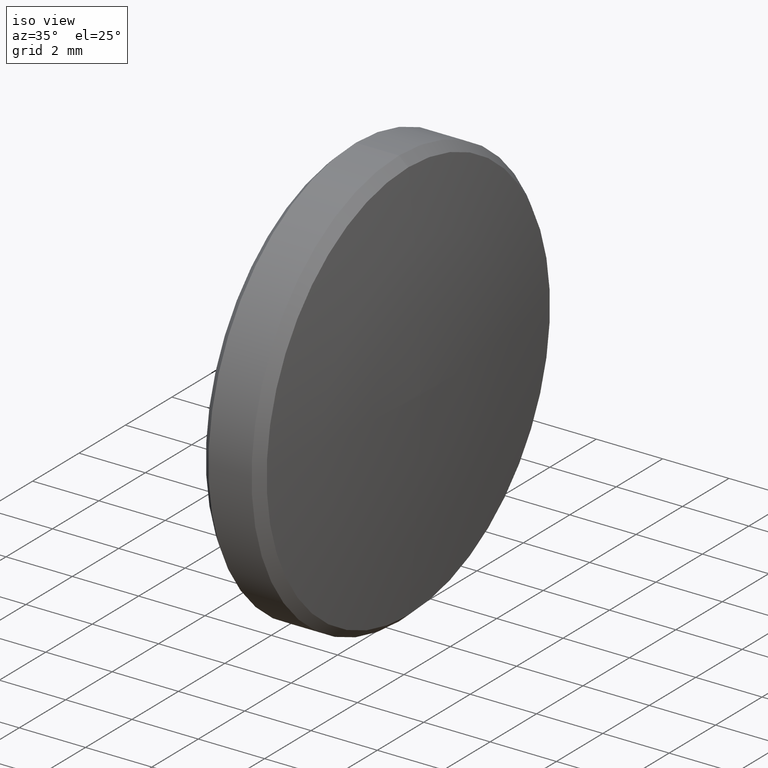
[diagram: clean part render]
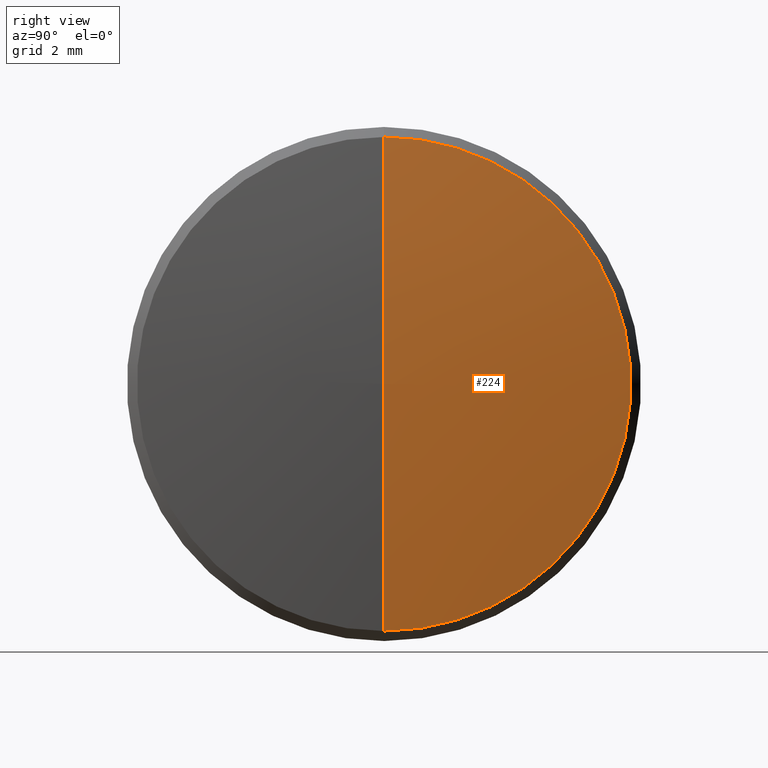
[diagram: tour spotlight — one face highlighted and labeled with its STEP entity id]
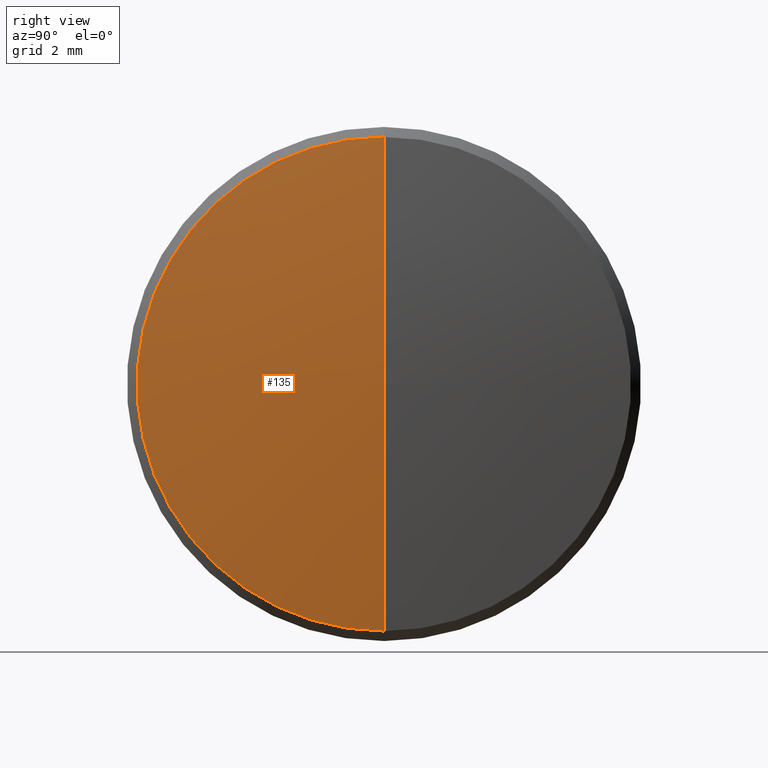
[diagram: tour spotlight — one face highlighted and labeled with its STEP entity id]
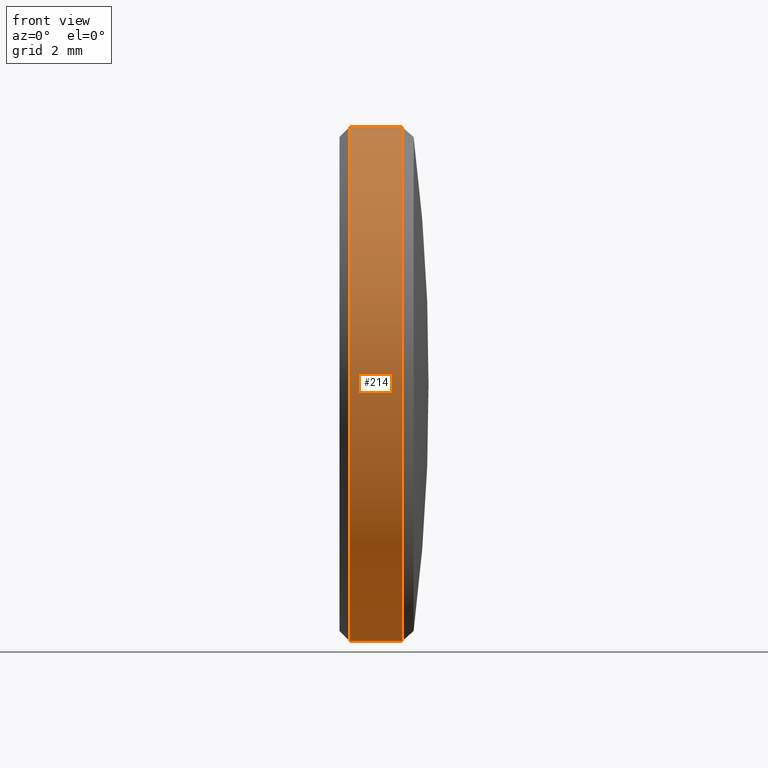
[diagram: tour spotlight — one face highlighted and labeled with its STEP entity id]
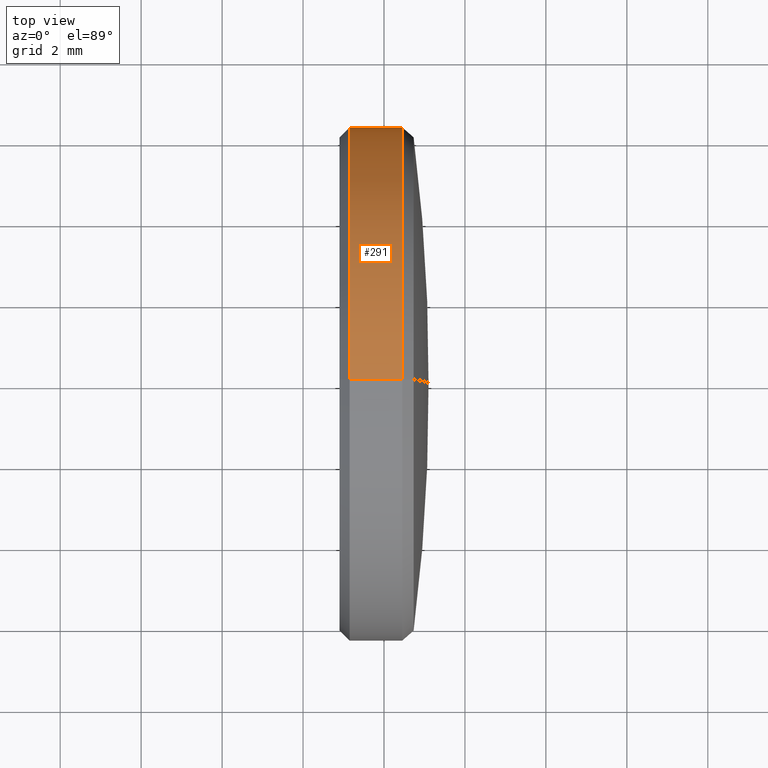
[diagram: tour spotlight — one face highlighted and labeled with its STEP entity id]
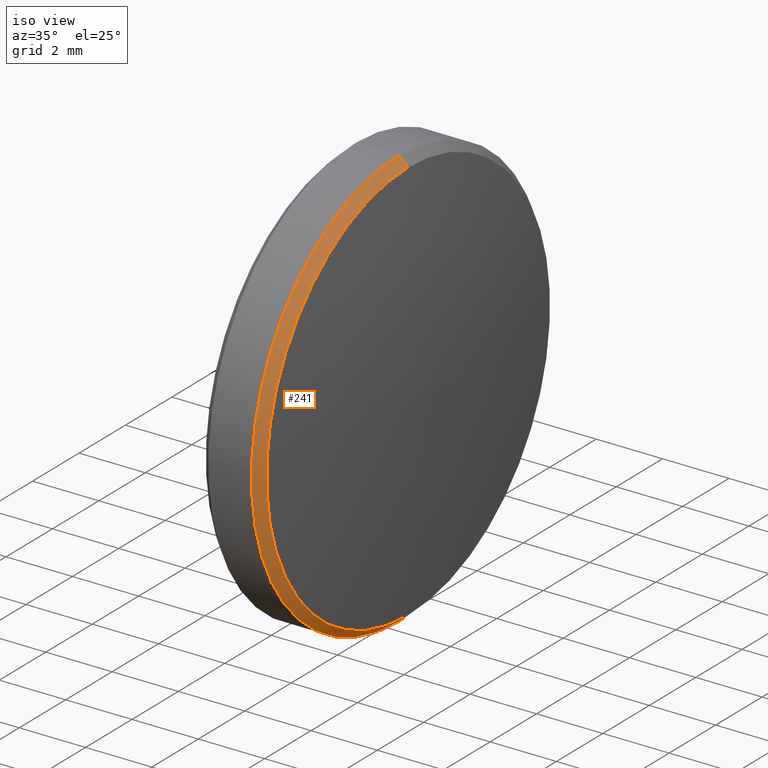
[diagram: tour spotlight — one face highlighted and labeled with its STEP entity id]
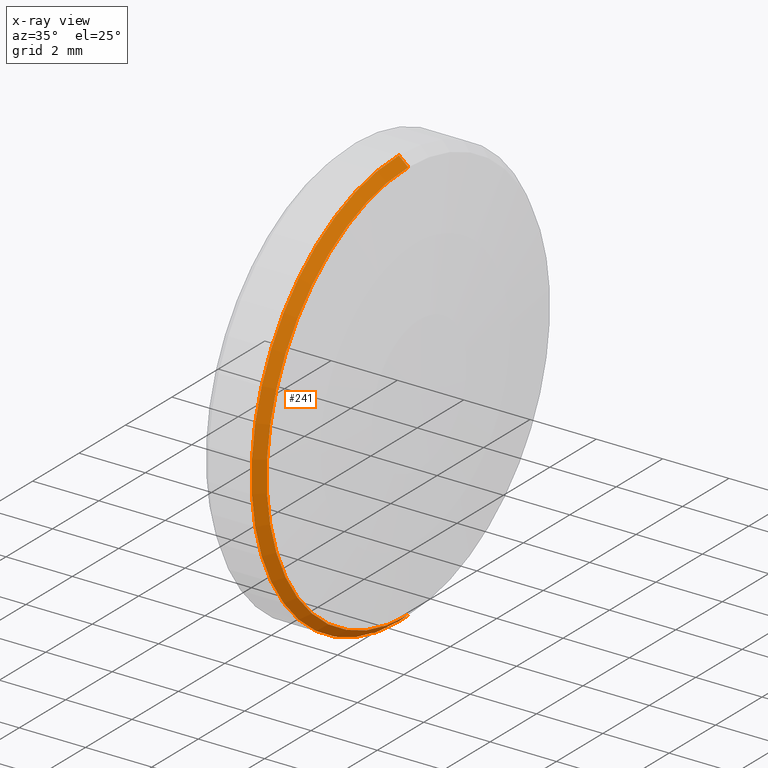
[diagram: x-ray of the same camera — body ghosted, this tour face saturated]
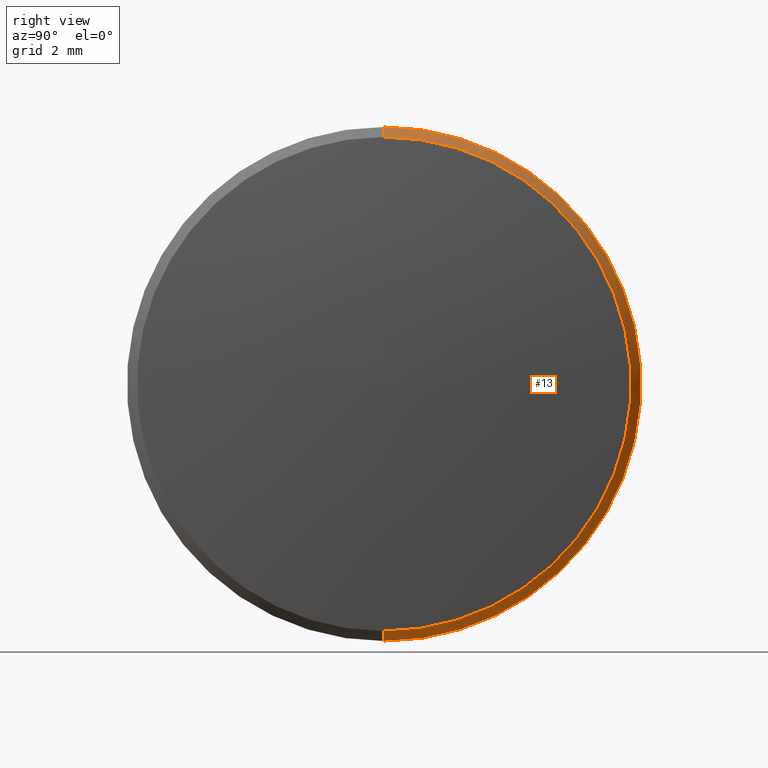
[diagram: tour spotlight — one face highlighted and labeled with its STEP entity id]
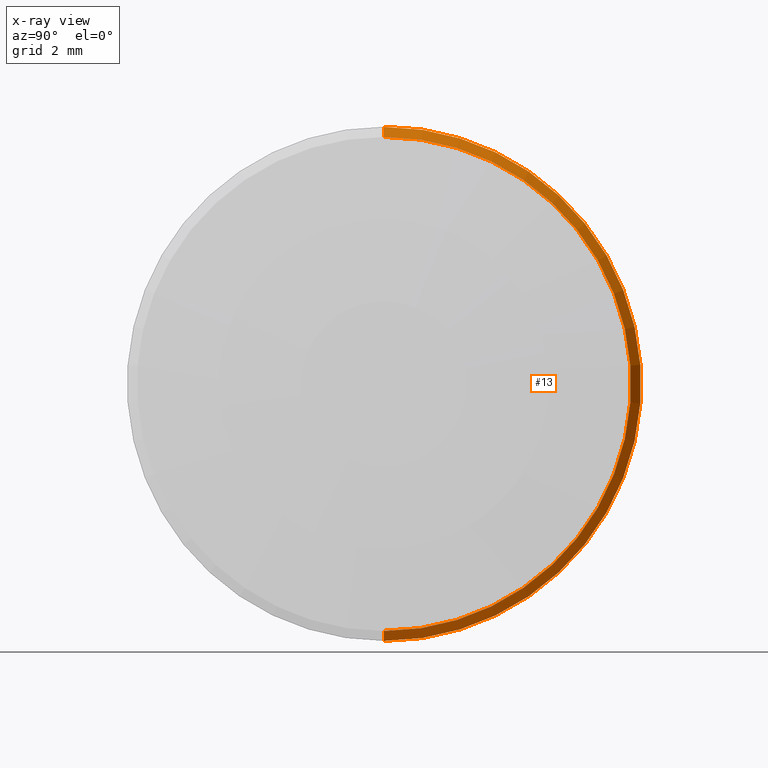
[diagram: x-ray of the same camera — body ghosted, this tour face saturated]
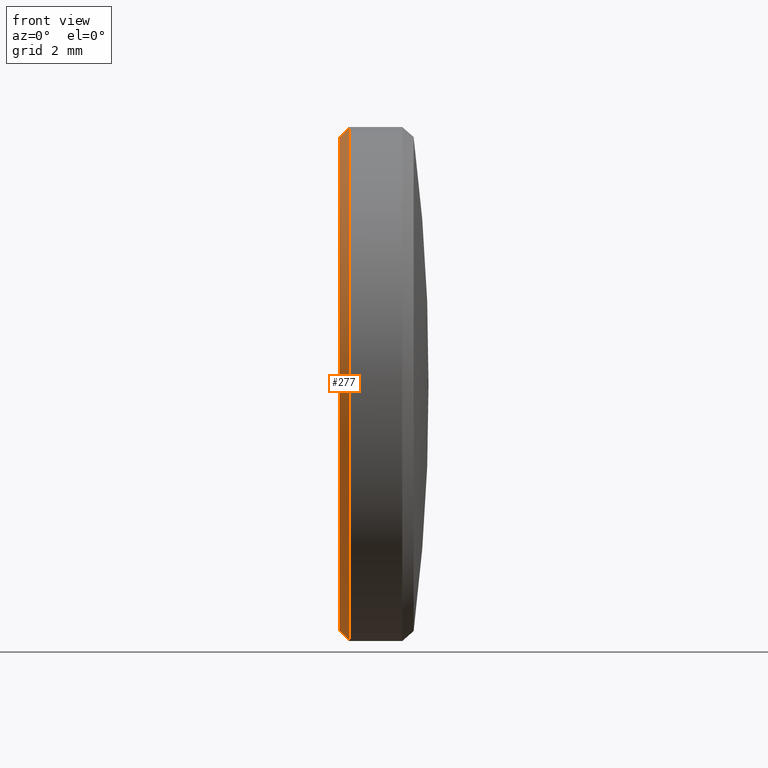
[diagram: tour spotlight — one face highlighted and labeled with its STEP entity id]
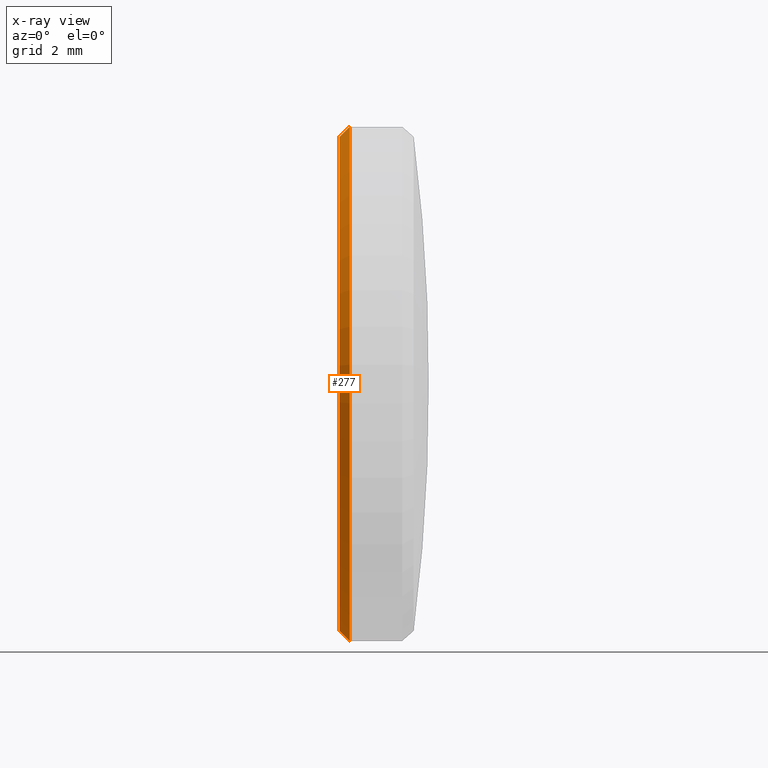
[diagram: x-ray of the same camera — body ghosted, this tour face saturated]
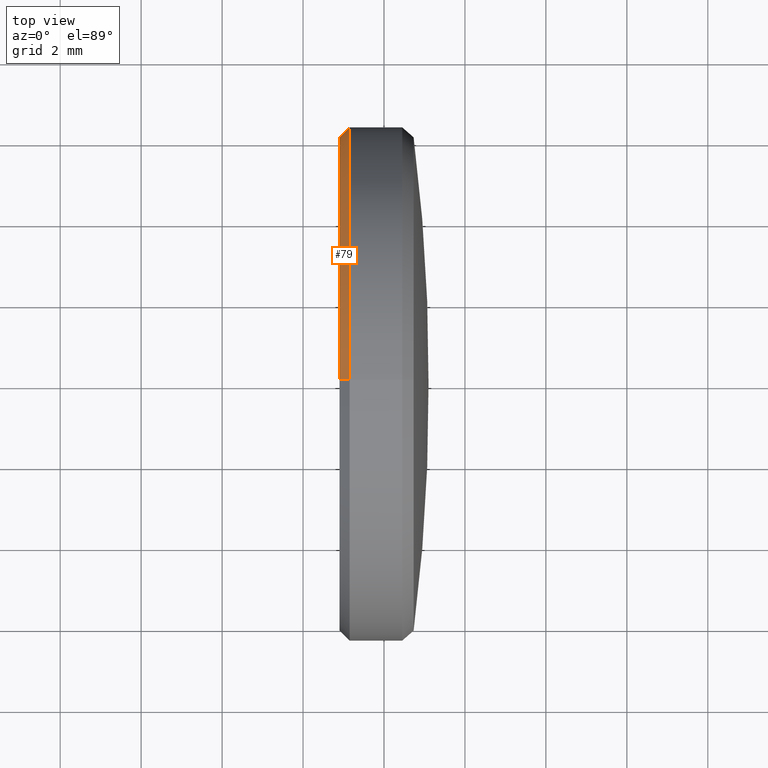
[diagram: tour spotlight — one face highlighted and labeled with its STEP entity id]
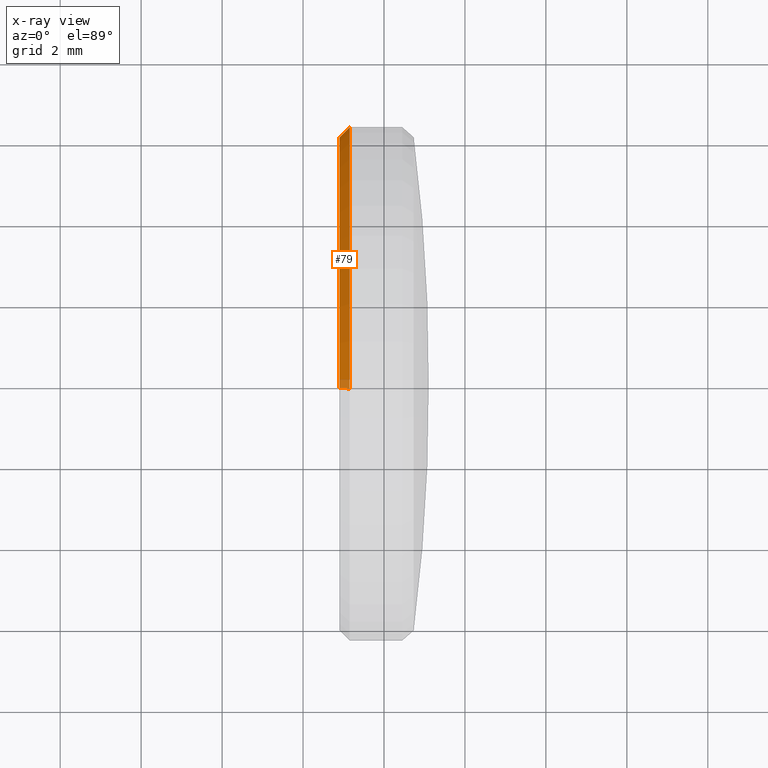
[diagram: x-ray of the same camera — body ghosted, this tour face saturated]
A machine part: a face-by-face anatomy tour. The part has 9 B-rep faces; the first image is the clean iso view, then the 8 largest visible faces are spotlighted one at a time (largest first), each with its STEP entity span.

Face 1 — right view, entity #224. In plain terms, the highlighted toroidal blend (fillet) surface has major radius 0.29 mm and minor (blend) radius 46 mm.
Definition (entity closure, byte-faithful):
#3 = CARTESIAN_POINT ( 'NONE',  ( -44.89908574560622900, 0.0000000000000000000, 0.2900182207492126900 ) ) ;
#12 = EDGE_LOOP ( 'NONE', ( #253, #68, #116 ) ) ;
#17 = DIRECTION ( 'NONE',  ( 1.000000000000000000, 0.0000000000000000000, 0.0000000000000000000 ) ) ;
#19 = CARTESIAN_POINT ( 'NONE',  ( 1.100000000000000100, 0.0000000000000000000, 0.0000000000000000000 ) ) ;
#44 = CARTESIAN_POINT ( 'NONE',  ( -44.89908574560622900, 3.551698857349338500E-017, -0.2900182207492126900 ) ) ;
#64 = CARTESIAN_POINT ( 'NONE',  ( 0.7321638494021294200, 7.473840680126849300E-016, -6.102854051740002300 ) ) ;
#68 = ORIENTED_EDGE ( 'NONE', *, *, #194, .T. ) ;
#89 = EDGE_CURVE ( 'NONE', #101, #103, #288, .T. ) ;
#92 = CARTESIAN_POINT ( 'NONE',  ( 0.7321638494021294200, 0.0000000000000000000, 6.102854051740002300 ) ) ;
#95 = AXIS2_PLACEMENT_3D ( 'NONE', #121, #17, #159 ) ;
#101 = VERTEX_POINT ( 'NONE', #19 ) ;
#103 = VERTEX_POINT ( 'NONE', #92 ) ;
#107 = DIRECTION ( 'NONE',  ( 0.0000000000000000000, -1.224646799147353200E-016, 1.000000000000000000 ) ) ;
#116 = ORIENTED_EDGE ( 'NONE', *, *, #282, .T. ) ;
#121 = CARTESIAN_POINT ( 'NONE',  ( 0.7321638494021259800, 0.0000000000000000000, 0.0000000000000000000 ) ) ;
#144 = CIRCLE ( 'NONE', #95, 6.102854051739994300 ) ;
#159 = DIRECTION ( 'NONE',  ( 0.0000000000000000000, 0.0000000000000000000, 1.000000000000000000 ) ) ;
#164 = TOROIDAL_SURFACE ( 'NONE', #290, 0.2900182207492126900, 46.00000000000000700 ) ;
#178 = AXIS2_PLACEMENT_3D ( 'NONE', #3, #297, #257 ) ;
#194 = EDGE_CURVE ( 'NONE', #101, #258, #210, .T. ) ;
#198 = DIRECTION ( 'NONE',  ( -1.000000000000000000, -0.0000000000000000000, -0.0000000000000000000 ) ) ;
#210 = CIRCLE ( 'NONE', #245, 46.00000000000000700 ) ;
#212 = DIRECTION ( 'NONE',  ( 0.0000000000000000000, 0.0000000000000000000, 1.000000000000000000 ) ) ;
#213 = FACE_OUTER_BOUND ( 'NONE', #12, .T. ) ;
#221 = CARTESIAN_POINT ( 'NONE',  ( -44.89908574560622900, 0.0000000000000000000, 0.0000000000000000000 ) ) ;
#224 = ADVANCED_FACE ( 'NONE', ( #213 ), #164, .T. ) ;
#245 = AXIS2_PLACEMENT_3D ( 'NONE', #44, #284, #107 ) ;
#253 = ORIENTED_EDGE ( 'NONE', *, *, #89, .F. ) ;
#257 = DIRECTION ( 'NONE',  ( 0.0000000000000000000, 0.0000000000000000000, -1.000000000000000000 ) ) ;
#258 = VERTEX_POINT ( 'NONE', #64 ) ;
#282 = EDGE_CURVE ( 'NONE', #258, #103, #144, .T. ) ;
#284 = DIRECTION ( 'NONE',  ( -0.0000000000000000000, 1.000000000000000000, 1.224646799147353200E-016 ) ) ;
#288 = CIRCLE ( 'NONE', #178, 46.00000000000000700 ) ;
#290 = AXIS2_PLACEMENT_3D ( 'NONE', #221, #198, #212 ) ;
#297 = DIRECTION ( 'NONE',  ( 0.0000000000000000000, -1.000000000000000000, 0.0000000000000000000 ) ) ;

Face 2 — right view, entity #135. In plain terms, the highlighted toroidal blend (fillet) surface has major radius 0.29 mm and minor (blend) radius 46 mm.
Definition (entity closure, byte-faithful):
#3 = CARTESIAN_POINT ( 'NONE',  ( -44.89908574560622900, 0.0000000000000000000, 0.2900182207492126900 ) ) ;
#4 = DIRECTION ( 'NONE',  ( 0.0000000000000000000, 0.0000000000000000000, 1.000000000000000000 ) ) ;
#19 = CARTESIAN_POINT ( 'NONE',  ( 1.100000000000000100, 0.0000000000000000000, 0.0000000000000000000 ) ) ;
#32 = ORIENTED_EDGE ( 'NONE', *, *, #194, .F. ) ;
#44 = CARTESIAN_POINT ( 'NONE',  ( -44.89908574560622900, 3.551698857349338500E-017, -0.2900182207492126900 ) ) ;
#64 = CARTESIAN_POINT ( 'NONE',  ( 0.7321638494021294200, 7.473840680126849300E-016, -6.102854051740002300 ) ) ;
#67 = ORIENTED_EDGE ( 'NONE', *, *, #232, .T. ) ;
#73 = CARTESIAN_POINT ( 'NONE',  ( -44.89908574560622900, 0.0000000000000000000, 0.0000000000000000000 ) ) ;
#88 = ORIENTED_EDGE ( 'NONE', *, *, #89, .T. ) ;
#89 = EDGE_CURVE ( 'NONE', #101, #103, #288, .T. ) ;
#92 = CARTESIAN_POINT ( 'NONE',  ( 0.7321638494021294200, 0.0000000000000000000, 6.102854051740002300 ) ) ;
#100 = AXIS2_PLACEMENT_3D ( 'NONE', #105, #301, #4 ) ;
#101 = VERTEX_POINT ( 'NONE', #19 ) ;
#103 = VERTEX_POINT ( 'NONE', #92 ) ;
#105 = CARTESIAN_POINT ( 'NONE',  ( 0.7321638494021259800, 0.0000000000000000000, 0.0000000000000000000 ) ) ;
#106 = DIRECTION ( 'NONE',  ( -1.000000000000000000, -0.0000000000000000000, -0.0000000000000000000 ) ) ;
#107 = DIRECTION ( 'NONE',  ( 0.0000000000000000000, -1.224646799147353200E-016, 1.000000000000000000 ) ) ;
#109 = CIRCLE ( 'NONE', #100, 6.102854051739994300 ) ;
#127 = AXIS2_PLACEMENT_3D ( 'NONE', #73, #106, #166 ) ;
#135 = ADVANCED_FACE ( 'NONE', ( #192 ), #197, .T. ) ;
#166 = DIRECTION ( 'NONE',  ( 0.0000000000000000000, 0.0000000000000000000, 1.000000000000000000 ) ) ;
#176 = EDGE_LOOP ( 'NONE', ( #32, #88, #67 ) ) ;
#178 = AXIS2_PLACEMENT_3D ( 'NONE', #3, #297, #257 ) ;
#192 = FACE_OUTER_BOUND ( 'NONE', #176, .T. ) ;
#194 = EDGE_CURVE ( 'NONE', #101, #258, #210, .T. ) ;
#197 = TOROIDAL_SURFACE ( 'NONE', #127, 0.2900182207492126900, 46.00000000000000700 ) ;
#210 = CIRCLE ( 'NONE', #245, 46.00000000000000700 ) ;
#232 = EDGE_CURVE ( 'NONE', #103, #258, #109, .T. ) ;
#245 = AXIS2_PLACEMENT_3D ( 'NONE', #44, #284, #107 ) ;
#257 = DIRECTION ( 'NONE',  ( 0.0000000000000000000, 0.0000000000000000000, -1.000000000000000000 ) ) ;
#258 = VERTEX_POINT ( 'NONE', #64 ) ;
#284 = DIRECTION ( 'NONE',  ( -0.0000000000000000000, 1.000000000000000000, 1.224646799147353200E-016 ) ) ;
#288 = CIRCLE ( 'NONE', #178, 46.00000000000000700 ) ;
#297 = DIRECTION ( 'NONE',  ( 0.0000000000000000000, -1.000000000000000000, 0.0000000000000000000 ) ) ;
#301 = DIRECTION ( 'NONE',  ( 1.000000000000000000, 0.0000000000000000000, 0.0000000000000000000 ) ) ;

Face 3 — front view, entity #214. In plain terms, the highlighted cylindrical surface (partial cylindrical patch) has radius 6.35 mm, axis along (-1, -0, -0).
Definition (entity closure, byte-faithful):
#1 = VERTEX_POINT ( 'NONE', #218 ) ;
#6 = DIRECTION ( 'NONE',  ( 0.0000000000000000000, 0.0000000000000000000, 1.000000000000000000 ) ) ;
#28 = CARTESIAN_POINT ( 'NONE',  ( 0.4499999999992704300, 7.776507174585695100E-016, -6.350000000000002300 ) ) ;
#37 = CIRCLE ( 'NONE', #40, 6.350000000000002300 ) ;
#38 = CARTESIAN_POINT ( 'NONE',  ( -0.8499999999999980900, 0.0000000000000000000, 0.0000000000000000000 ) ) ;
#40 = AXIS2_PLACEMENT_3D ( 'NONE', #38, #207, #209 ) ;
#41 = AXIS2_PLACEMENT_3D ( 'NONE', #153, #275, #168 ) ;
#52 = DIRECTION ( 'NONE',  ( -1.000000000000000000, -0.0000000000000000000, -0.0000000000000000000 ) ) ;
#56 = LINE ( 'NONE', #220, #185 ) ;
#57 = ORIENTED_EDGE ( 'NONE', *, *, #278, .T. ) ;
#63 = VERTEX_POINT ( 'NONE', #28 ) ;
#76 = CYLINDRICAL_SURFACE ( 'NONE', #41, 6.350000000000002300 ) ;
#83 = CARTESIAN_POINT ( 'NONE',  ( 0.4499999999992704300, 0.0000000000000000000, 0.0000000000000000000 ) ) ;
#85 = CARTESIAN_POINT ( 'NONE',  ( -0.8499999999999980900, 0.0000000000000000000, 6.350000000000002300 ) ) ;
#91 = AXIS2_PLACEMENT_3D ( 'NONE', #83, #256, #6 ) ;
#93 = VERTEX_POINT ( 'NONE', #85 ) ;
#114 = VECTOR ( 'NONE', #217, 1000.000000000000000 ) ;
#119 = VERTEX_POINT ( 'NONE', #294 ) ;
#123 = EDGE_CURVE ( 'NONE', #63, #119, #56, .T. ) ;
#138 = ORIENTED_EDGE ( 'NONE', *, *, #123, .F. ) ;
#148 = ORIENTED_EDGE ( 'NONE', *, *, #267, .T. ) ;
#153 = CARTESIAN_POINT ( 'NONE',  ( -1.100000000000000100, 0.0000000000000000000, 0.0000000000000000000 ) ) ;
#163 = EDGE_LOOP ( 'NONE', ( #138, #57, #148, #298 ) ) ;
#168 = DIRECTION ( 'NONE',  ( 0.0000000000000000000, 0.0000000000000000000, 1.000000000000000000 ) ) ;
#185 = VECTOR ( 'NONE', #52, 1000.000000000000000 ) ;
#191 = CARTESIAN_POINT ( 'NONE',  ( -1.100000000000000100, 0.0000000000000000000, 6.350000000000002300 ) ) ;
#193 = EDGE_CURVE ( 'NONE', #93, #119, #37, .T. ) ;
#207 = DIRECTION ( 'NONE',  ( 1.000000000000000000, 0.0000000000000000000, 0.0000000000000000000 ) ) ;
#209 = DIRECTION ( 'NONE',  ( 0.0000000000000000000, 0.0000000000000000000, -1.000000000000000000 ) ) ;
#214 = ADVANCED_FACE ( 'NONE', ( #248 ), #76, .T. ) ;
#217 = DIRECTION ( 'NONE',  ( -1.000000000000000000, -0.0000000000000000000, -0.0000000000000000000 ) ) ;
#218 = CARTESIAN_POINT ( 'NONE',  ( 0.4499999999992704300, 0.0000000000000000000, 6.350000000000002300 ) ) ;
#220 = CARTESIAN_POINT ( 'NONE',  ( -1.100000000000000100, 7.776507174585695100E-016, -6.350000000000002300 ) ) ;
#248 = FACE_OUTER_BOUND ( 'NONE', #163, .T. ) ;
#256 = DIRECTION ( 'NONE',  ( -1.000000000000000000, -0.0000000000000000000, -0.0000000000000000000 ) ) ;
#267 = EDGE_CURVE ( 'NONE', #1, #93, #295, .T. ) ;
#275 = DIRECTION ( 'NONE',  ( -1.000000000000000000, -0.0000000000000000000, -0.0000000000000000000 ) ) ;
#278 = EDGE_CURVE ( 'NONE', #63, #1, #300, .T. ) ;
#294 = CARTESIAN_POINT ( 'NONE',  ( -0.8499999999999980900, 7.776507174585695100E-016, -6.350000000000002300 ) ) ;
#295 = LINE ( 'NONE', #191, #114 ) ;
#298 = ORIENTED_EDGE ( 'NONE', *, *, #193, .T. ) ;
#300 = CIRCLE ( 'NONE', #91, 6.350000000000002300 ) ;

Face 4 — top view, entity #291. In plain terms, the highlighted cylindrical surface (partial cylindrical patch) has radius 6.35 mm, axis along (-1, -0, -0).
Definition (entity closure, byte-faithful):
#1 = VERTEX_POINT ( 'NONE', #218 ) ;
#25 = EDGE_CURVE ( 'NONE', #119, #93, #273, .T. ) ;
#26 = CIRCLE ( 'NONE', #160, 6.350000000000002300 ) ;
#28 = CARTESIAN_POINT ( 'NONE',  ( 0.4499999999992704300, 7.776507174585695100E-016, -6.350000000000002300 ) ) ;
#31 = AXIS2_PLACEMENT_3D ( 'NONE', #152, #48, #35 ) ;
#35 = DIRECTION ( 'NONE',  ( 0.0000000000000000000, 0.0000000000000000000, -1.000000000000000000 ) ) ;
#39 = ORIENTED_EDGE ( 'NONE', *, *, #123, .T. ) ;
#48 = DIRECTION ( 'NONE',  ( 1.000000000000000000, 0.0000000000000000000, 0.0000000000000000000 ) ) ;
#49 = EDGE_LOOP ( 'NONE', ( #203, #39, #133, #240 ) ) ;
#52 = DIRECTION ( 'NONE',  ( -1.000000000000000000, -0.0000000000000000000, -0.0000000000000000000 ) ) ;
#56 = LINE ( 'NONE', #220, #185 ) ;
#58 = EDGE_CURVE ( 'NONE', #1, #63, #26, .T. ) ;
#63 = VERTEX_POINT ( 'NONE', #28 ) ;
#85 = CARTESIAN_POINT ( 'NONE',  ( -0.8499999999999980900, 0.0000000000000000000, 6.350000000000002300 ) ) ;
#93 = VERTEX_POINT ( 'NONE', #85 ) ;
#99 = FACE_OUTER_BOUND ( 'NONE', #49, .T. ) ;
#114 = VECTOR ( 'NONE', #217, 1000.000000000000000 ) ;
#119 = VERTEX_POINT ( 'NONE', #294 ) ;
#123 = EDGE_CURVE ( 'NONE', #63, #119, #56, .T. ) ;
#133 = ORIENTED_EDGE ( 'NONE', *, *, #25, .T. ) ;
#152 = CARTESIAN_POINT ( 'NONE',  ( -0.8499999999999980900, 0.0000000000000000000, 0.0000000000000000000 ) ) ;
#160 = AXIS2_PLACEMENT_3D ( 'NONE', #259, #246, #247 ) ;
#169 = CARTESIAN_POINT ( 'NONE',  ( -1.100000000000000100, 0.0000000000000000000, 0.0000000000000000000 ) ) ;
#185 = VECTOR ( 'NONE', #52, 1000.000000000000000 ) ;
#191 = CARTESIAN_POINT ( 'NONE',  ( -1.100000000000000100, 0.0000000000000000000, 6.350000000000002300 ) ) ;
#203 = ORIENTED_EDGE ( 'NONE', *, *, #58, .T. ) ;
#217 = DIRECTION ( 'NONE',  ( -1.000000000000000000, -0.0000000000000000000, -0.0000000000000000000 ) ) ;
#218 = CARTESIAN_POINT ( 'NONE',  ( 0.4499999999992704300, 0.0000000000000000000, 6.350000000000002300 ) ) ;
#220 = CARTESIAN_POINT ( 'NONE',  ( -1.100000000000000100, 7.776507174585695100E-016, -6.350000000000002300 ) ) ;
#229 = DIRECTION ( 'NONE',  ( 0.0000000000000000000, 0.0000000000000000000, 1.000000000000000000 ) ) ;
#240 = ORIENTED_EDGE ( 'NONE', *, *, #267, .F. ) ;
#246 = DIRECTION ( 'NONE',  ( -1.000000000000000000, -0.0000000000000000000, -0.0000000000000000000 ) ) ;
#247 = DIRECTION ( 'NONE',  ( 0.0000000000000000000, 0.0000000000000000000, 1.000000000000000000 ) ) ;
#250 = DIRECTION ( 'NONE',  ( -1.000000000000000000, -0.0000000000000000000, -0.0000000000000000000 ) ) ;
#259 = CARTESIAN_POINT ( 'NONE',  ( 0.4499999999992704300, 0.0000000000000000000, 0.0000000000000000000 ) ) ;
#264 = AXIS2_PLACEMENT_3D ( 'NONE', #169, #250, #229 ) ;
#267 = EDGE_CURVE ( 'NONE', #1, #93, #295, .T. ) ;
#273 = CIRCLE ( 'NONE', #31, 6.350000000000002300 ) ;
#287 = CYLINDRICAL_SURFACE ( 'NONE', #264, 6.350000000000002300 ) ;
#291 = ADVANCED_FACE ( 'NONE', ( #99 ), #287, .T. ) ;
#294 = CARTESIAN_POINT ( 'NONE',  ( -0.8499999999999980900, 7.776507174585695100E-016, -6.350000000000002300 ) ) ;
#295 = LINE ( 'NONE', #191, #114 ) ;

Face 5 — iso view, entity #241. An x-ray twin of the same camera follows (body ghosted, this face saturated) — the face is partly hidden behind the body. In plain terms, the highlighted conical surface has half-angle 41.215 deg.
Definition (entity closure, byte-faithful):
#1 = VERTEX_POINT ( 'NONE', #218 ) ;
#4 = DIRECTION ( 'NONE',  ( 0.0000000000000000000, 0.0000000000000000000, 1.000000000000000000 ) ) ;
#6 = DIRECTION ( 'NONE',  ( 0.0000000000000000000, 0.0000000000000000000, 1.000000000000000000 ) ) ;
#27 = DIRECTION ( 'NONE',  ( -1.000000000000000000, -0.0000000000000000000, -0.0000000000000000000 ) ) ;
#28 = CARTESIAN_POINT ( 'NONE',  ( 0.4499999999992704300, 7.776507174585695100E-016, -6.350000000000002300 ) ) ;
#47 = FACE_OUTER_BOUND ( 'NONE', #146, .T. ) ;
#50 = DIRECTION ( 'NONE',  ( -0.7522428910702642100, 8.069025117982657200E-017, -0.6588859027436013700 ) ) ;
#54 = AXIS2_PLACEMENT_3D ( 'NONE', #75, #27, #204 ) ;
#63 = VERTEX_POINT ( 'NONE', #28 ) ;
#64 = CARTESIAN_POINT ( 'NONE',  ( 0.7321638494021294200, 7.473840680126849300E-016, -6.102854051740002300 ) ) ;
#70 = ORIENTED_EDGE ( 'NONE', *, *, #171, .F. ) ;
#72 = ORIENTED_EDGE ( 'NONE', *, *, #110, .T. ) ;
#75 = CARTESIAN_POINT ( 'NONE',  ( 0.4499999999992704300, 0.0000000000000000000, 0.0000000000000000000 ) ) ;
#83 = CARTESIAN_POINT ( 'NONE',  ( 0.4499999999992704300, 0.0000000000000000000, 0.0000000000000000000 ) ) ;
#91 = AXIS2_PLACEMENT_3D ( 'NONE', #83, #256, #6 ) ;
#92 = CARTESIAN_POINT ( 'NONE',  ( 0.7321638494021294200, 0.0000000000000000000, 6.102854051740002300 ) ) ;
#100 = AXIS2_PLACEMENT_3D ( 'NONE', #105, #301, #4 ) ;
#103 = VERTEX_POINT ( 'NONE', #92 ) ;
#105 = CARTESIAN_POINT ( 'NONE',  ( 0.7321638494021259800, 0.0000000000000000000, 0.0000000000000000000 ) ) ;
#109 = CIRCLE ( 'NONE', #100, 6.102854051739994300 ) ;
#110 = EDGE_CURVE ( 'NONE', #103, #1, #269, .T. ) ;
#140 = CONICAL_SURFACE ( 'NONE', #54, 6.350000000000002300, 0.7193367645129472600 ) ;
#146 = EDGE_LOOP ( 'NONE', ( #70, #227, #72, #237 ) ) ;
#157 = CARTESIAN_POINT ( 'NONE',  ( 0.4499999999992704300, 0.0000000000000000000, 6.350000000000002300 ) ) ;
#171 = EDGE_CURVE ( 'NONE', #258, #63, #183, .T. ) ;
#177 = VECTOR ( 'NONE', #50, 1000.000000000000100 ) ;
#183 = LINE ( 'NONE', #190, #177 ) ;
#188 = DIRECTION ( 'NONE',  ( -0.7522428910702642100, 0.0000000000000000000, 0.6588859027436013700 ) ) ;
#190 = CARTESIAN_POINT ( 'NONE',  ( 0.4499999999992704300, 7.776507174585695100E-016, -6.350000000000002300 ) ) ;
#204 = DIRECTION ( 'NONE',  ( 0.0000000000000000000, 0.0000000000000000000, 1.000000000000000000 ) ) ;
#218 = CARTESIAN_POINT ( 'NONE',  ( 0.4499999999992704300, 0.0000000000000000000, 6.350000000000002300 ) ) ;
#227 = ORIENTED_EDGE ( 'NONE', *, *, #232, .F. ) ;
#228 = VECTOR ( 'NONE', #188, 1000.000000000000100 ) ;
#232 = EDGE_CURVE ( 'NONE', #103, #258, #109, .T. ) ;
#237 = ORIENTED_EDGE ( 'NONE', *, *, #278, .F. ) ;
#241 = ADVANCED_FACE ( 'NONE', ( #47 ), #140, .T. ) ;
#256 = DIRECTION ( 'NONE',  ( -1.000000000000000000, -0.0000000000000000000, -0.0000000000000000000 ) ) ;
#258 = VERTEX_POINT ( 'NONE', #64 ) ;
#269 = LINE ( 'NONE', #157, #228 ) ;
#278 = EDGE_CURVE ( 'NONE', #63, #1, #300, .T. ) ;
#300 = CIRCLE ( 'NONE', #91, 6.350000000000002300 ) ;
#301 = DIRECTION ( 'NONE',  ( 1.000000000000000000, 0.0000000000000000000, 0.0000000000000000000 ) ) ;

Face 6 — right view, entity #13. An x-ray twin of the same camera follows (body ghosted, this face saturated) — the face is partly hidden behind the body. In plain terms, the highlighted conical surface has half-angle 41.215 deg.
Definition (entity closure, byte-faithful):
#1 = VERTEX_POINT ( 'NONE', #218 ) ;
#13 = ADVANCED_FACE ( 'NONE', ( #260 ), #167, .T. ) ;
#17 = DIRECTION ( 'NONE',  ( 1.000000000000000000, 0.0000000000000000000, 0.0000000000000000000 ) ) ;
#26 = CIRCLE ( 'NONE', #160, 6.350000000000002300 ) ;
#28 = CARTESIAN_POINT ( 'NONE',  ( 0.4499999999992704300, 7.776507174585695100E-016, -6.350000000000002300 ) ) ;
#34 = DIRECTION ( 'NONE',  ( 0.0000000000000000000, 0.0000000000000000000, 1.000000000000000000 ) ) ;
#42 = EDGE_LOOP ( 'NONE', ( #53, #131, #126, #82 ) ) ;
#50 = DIRECTION ( 'NONE',  ( -0.7522428910702642100, 8.069025117982657200E-017, -0.6588859027436013700 ) ) ;
#53 = ORIENTED_EDGE ( 'NONE', *, *, #282, .F. ) ;
#58 = EDGE_CURVE ( 'NONE', #1, #63, #26, .T. ) ;
#63 = VERTEX_POINT ( 'NONE', #28 ) ;
#64 = CARTESIAN_POINT ( 'NONE',  ( 0.7321638494021294200, 7.473840680126849300E-016, -6.102854051740002300 ) ) ;
#82 = ORIENTED_EDGE ( 'NONE', *, *, #110, .F. ) ;
#92 = CARTESIAN_POINT ( 'NONE',  ( 0.7321638494021294200, 0.0000000000000000000, 6.102854051740002300 ) ) ;
#95 = AXIS2_PLACEMENT_3D ( 'NONE', #121, #17, #159 ) ;
#103 = VERTEX_POINT ( 'NONE', #92 ) ;
#110 = EDGE_CURVE ( 'NONE', #103, #1, #269, .T. ) ;
#120 = AXIS2_PLACEMENT_3D ( 'NONE', #158, #289, #34 ) ;
#121 = CARTESIAN_POINT ( 'NONE',  ( 0.7321638494021259800, 0.0000000000000000000, 0.0000000000000000000 ) ) ;
#126 = ORIENTED_EDGE ( 'NONE', *, *, #58, .F. ) ;
#131 = ORIENTED_EDGE ( 'NONE', *, *, #171, .T. ) ;
#144 = CIRCLE ( 'NONE', #95, 6.102854051739994300 ) ;
#157 = CARTESIAN_POINT ( 'NONE',  ( 0.4499999999992704300, 0.0000000000000000000, 6.350000000000002300 ) ) ;
#158 = CARTESIAN_POINT ( 'NONE',  ( 0.4499999999992704300, 0.0000000000000000000, 0.0000000000000000000 ) ) ;
#159 = DIRECTION ( 'NONE',  ( 0.0000000000000000000, 0.0000000000000000000, 1.000000000000000000 ) ) ;
#160 = AXIS2_PLACEMENT_3D ( 'NONE', #259, #246, #247 ) ;
#167 = CONICAL_SURFACE ( 'NONE', #120, 6.350000000000002300, 0.7193367645129472600 ) ;
#171 = EDGE_CURVE ( 'NONE', #258, #63, #183, .T. ) ;
#177 = VECTOR ( 'NONE', #50, 1000.000000000000100 ) ;
#183 = LINE ( 'NONE', #190, #177 ) ;
#188 = DIRECTION ( 'NONE',  ( -0.7522428910702642100, 0.0000000000000000000, 0.6588859027436013700 ) ) ;
#190 = CARTESIAN_POINT ( 'NONE',  ( 0.4499999999992704300, 7.776507174585695100E-016, -6.350000000000002300 ) ) ;
#218 = CARTESIAN_POINT ( 'NONE',  ( 0.4499999999992704300, 0.0000000000000000000, 6.350000000000002300 ) ) ;
#228 = VECTOR ( 'NONE', #188, 1000.000000000000100 ) ;
#246 = DIRECTION ( 'NONE',  ( -1.000000000000000000, -0.0000000000000000000, -0.0000000000000000000 ) ) ;
#247 = DIRECTION ( 'NONE',  ( 0.0000000000000000000, 0.0000000000000000000, 1.000000000000000000 ) ) ;
#258 = VERTEX_POINT ( 'NONE', #64 ) ;
#259 = CARTESIAN_POINT ( 'NONE',  ( 0.4499999999992704300, 0.0000000000000000000, 0.0000000000000000000 ) ) ;
#260 = FACE_OUTER_BOUND ( 'NONE', #42, .T. ) ;
#269 = LINE ( 'NONE', #157, #228 ) ;
#282 = EDGE_CURVE ( 'NONE', #258, #103, #144, .T. ) ;
#289 = DIRECTION ( 'NONE',  ( -1.000000000000000000, -0.0000000000000000000, -0.0000000000000000000 ) ) ;

Face 7 — front view, entity #277. An x-ray twin of the same camera follows (body ghosted, this face saturated) — the face is partly hidden behind the body. In plain terms, the highlighted conical surface has half-angle 45 deg.
Definition (entity closure, byte-faithful):
#20 = CONICAL_SURFACE ( 'NONE', #238, 6.100000000000001400, 0.7853981633974466100 ) ;
#22 = CARTESIAN_POINT ( 'NONE',  ( -1.100000000000000100, 7.470345474798856300E-016, 6.100000000000001400 ) ) ;
#30 = FACE_OUTER_BOUND ( 'NONE', #118, .T. ) ;
#37 = CIRCLE ( 'NONE', #40, 6.350000000000002300 ) ;
#38 = CARTESIAN_POINT ( 'NONE',  ( -0.8499999999999980900, 0.0000000000000000000, 0.0000000000000000000 ) ) ;
#40 = AXIS2_PLACEMENT_3D ( 'NONE', #38, #207, #209 ) ;
#45 = CIRCLE ( 'NONE', #211, 6.100000000000001400 ) ;
#66 = CARTESIAN_POINT ( 'NONE',  ( -1.100000000000000100, 0.0000000000000000000, -6.100000000000001400 ) ) ;
#77 = VERTEX_POINT ( 'NONE', #249 ) ;
#78 = DIRECTION ( 'NONE',  ( 0.7071067811865487900, 8.659560562354918100E-017, 0.7071067811865463500 ) ) ;
#81 = ORIENTED_EDGE ( 'NONE', *, *, #132, .F. ) ;
#85 = CARTESIAN_POINT ( 'NONE',  ( -0.8499999999999980900, 0.0000000000000000000, 6.350000000000002300 ) ) ;
#93 = VERTEX_POINT ( 'NONE', #85 ) ;
#96 = CARTESIAN_POINT ( 'NONE',  ( -1.100000000000000100, 0.0000000000000000000, 0.0000000000000000000 ) ) ;
#97 = VERTEX_POINT ( 'NONE', #233 ) ;
#111 = DIRECTION ( 'NONE',  ( 0.0000000000000000000, 0.0000000000000000000, -1.000000000000000000 ) ) ;
#113 = ORIENTED_EDGE ( 'NONE', *, *, #142, .T. ) ;
#118 = EDGE_LOOP ( 'NONE', ( #81, #251, #113, #151 ) ) ;
#119 = VERTEX_POINT ( 'NONE', #294 ) ;
#132 = EDGE_CURVE ( 'NONE', #97, #93, #234, .T. ) ;
#137 = CARTESIAN_POINT ( 'NONE',  ( -1.100000000000000100, 0.0000000000000000000, 0.0000000000000000000 ) ) ;
#142 = EDGE_CURVE ( 'NONE', #77, #119, #205, .T. ) ;
#150 = EDGE_CURVE ( 'NONE', #77, #97, #45, .T. ) ;
#151 = ORIENTED_EDGE ( 'NONE', *, *, #193, .F. ) ;
#170 = DIRECTION ( 'NONE',  ( -1.000000000000000000, -0.0000000000000000000, -0.0000000000000000000 ) ) ;
#189 = VECTOR ( 'NONE', #78, 1000.000000000000000 ) ;
#193 = EDGE_CURVE ( 'NONE', #93, #119, #37, .T. ) ;
#205 = LINE ( 'NONE', #66, #231 ) ;
#207 = DIRECTION ( 'NONE',  ( 1.000000000000000000, 0.0000000000000000000, 0.0000000000000000000 ) ) ;
#209 = DIRECTION ( 'NONE',  ( 0.0000000000000000000, 0.0000000000000000000, -1.000000000000000000 ) ) ;
#211 = AXIS2_PLACEMENT_3D ( 'NONE', #96, #170, #111 ) ;
#216 = DIRECTION ( 'NONE',  ( 1.000000000000000000, 0.0000000000000000000, 0.0000000000000000000 ) ) ;
#231 = VECTOR ( 'NONE', #261, 1000.000000000000000 ) ;
#233 = CARTESIAN_POINT ( 'NONE',  ( -1.100000000000000100, 7.623426324692276200E-016, 6.100000000000001400 ) ) ;
#234 = LINE ( 'NONE', #22, #189 ) ;
#238 = AXIS2_PLACEMENT_3D ( 'NONE', #137, #216, #239 ) ;
#239 = DIRECTION ( 'NONE',  ( 0.0000000000000000000, 0.0000000000000000000, -1.000000000000000000 ) ) ;
#249 = CARTESIAN_POINT ( 'NONE',  ( -1.100000000000000100, 0.0000000000000000000, -6.100000000000001400 ) ) ;
#251 = ORIENTED_EDGE ( 'NONE', *, *, #150, .F. ) ;
#261 = DIRECTION ( 'NONE',  ( 0.7071067811865487900, 0.0000000000000000000, -0.7071067811865463500 ) ) ;
#277 = ADVANCED_FACE ( 'NONE', ( #30 ), #20, .T. ) ;
#294 = CARTESIAN_POINT ( 'NONE',  ( -0.8499999999999980900, 7.776507174585695100E-016, -6.350000000000002300 ) ) ;

Face 8 — top view, entity #79. An x-ray twin of the same camera follows (body ghosted, this face saturated) — the face is partly hidden behind the body. In plain terms, the highlighted conical surface has half-angle 45 deg.
Definition (entity closure, byte-faithful):
#2 = ORIENTED_EDGE ( 'NONE', *, *, #142, .F. ) ;
#14 = DIRECTION ( 'NONE',  ( -1.000000000000000000, -0.0000000000000000000, -0.0000000000000000000 ) ) ;
#16 = FACE_OUTER_BOUND ( 'NONE', #112, .T. ) ;
#22 = CARTESIAN_POINT ( 'NONE',  ( -1.100000000000000100, 7.470345474798856300E-016, 6.100000000000001400 ) ) ;
#25 = EDGE_CURVE ( 'NONE', #119, #93, #273, .T. ) ;
#31 = AXIS2_PLACEMENT_3D ( 'NONE', #152, #48, #35 ) ;
#33 = AXIS2_PLACEMENT_3D ( 'NONE', #161, #174, #156 ) ;
#35 = DIRECTION ( 'NONE',  ( 0.0000000000000000000, 0.0000000000000000000, -1.000000000000000000 ) ) ;
#48 = DIRECTION ( 'NONE',  ( 1.000000000000000000, 0.0000000000000000000, 0.0000000000000000000 ) ) ;
#66 = CARTESIAN_POINT ( 'NONE',  ( -1.100000000000000100, 0.0000000000000000000, -6.100000000000001400 ) ) ;
#77 = VERTEX_POINT ( 'NONE', #249 ) ;
#78 = DIRECTION ( 'NONE',  ( 0.7071067811865487900, 8.659560562354918100E-017, 0.7071067811865463500 ) ) ;
#79 = ADVANCED_FACE ( 'NONE', ( #16 ), #179, .T. ) ;
#85 = CARTESIAN_POINT ( 'NONE',  ( -0.8499999999999980900, 0.0000000000000000000, 6.350000000000002300 ) ) ;
#86 = ORIENTED_EDGE ( 'NONE', *, *, #98, .F. ) ;
#93 = VERTEX_POINT ( 'NONE', #85 ) ;
#97 = VERTEX_POINT ( 'NONE', #233 ) ;
#98 = EDGE_CURVE ( 'NONE', #97, #77, #281, .T. ) ;
#102 = ORIENTED_EDGE ( 'NONE', *, *, #132, .T. ) ;
#112 = EDGE_LOOP ( 'NONE', ( #86, #102, #122, #2 ) ) ;
#119 = VERTEX_POINT ( 'NONE', #294 ) ;
#122 = ORIENTED_EDGE ( 'NONE', *, *, #25, .F. ) ;
#132 = EDGE_CURVE ( 'NONE', #97, #93, #234, .T. ) ;
#142 = EDGE_CURVE ( 'NONE', #77, #119, #205, .T. ) ;
#149 = CARTESIAN_POINT ( 'NONE',  ( -1.100000000000000100, 0.0000000000000000000, 0.0000000000000000000 ) ) ;
#152 = CARTESIAN_POINT ( 'NONE',  ( -0.8499999999999980900, 0.0000000000000000000, 0.0000000000000000000 ) ) ;
#156 = DIRECTION ( 'NONE',  ( 0.0000000000000000000, 0.0000000000000000000, -1.000000000000000000 ) ) ;
#161 = CARTESIAN_POINT ( 'NONE',  ( -1.100000000000000100, 0.0000000000000000000, 0.0000000000000000000 ) ) ;
#174 = DIRECTION ( 'NONE',  ( 1.000000000000000000, 0.0000000000000000000, 0.0000000000000000000 ) ) ;
#179 = CONICAL_SURFACE ( 'NONE', #33, 6.100000000000001400, 0.7853981633974466100 ) ;
#180 = DIRECTION ( 'NONE',  ( 0.0000000000000000000, 0.0000000000000000000, -1.000000000000000000 ) ) ;
#189 = VECTOR ( 'NONE', #78, 1000.000000000000000 ) ;
#205 = LINE ( 'NONE', #66, #231 ) ;
#231 = VECTOR ( 'NONE', #261, 1000.000000000000000 ) ;
#233 = CARTESIAN_POINT ( 'NONE',  ( -1.100000000000000100, 7.623426324692276200E-016, 6.100000000000001400 ) ) ;
#234 = LINE ( 'NONE', #22, #189 ) ;
#249 = CARTESIAN_POINT ( 'NONE',  ( -1.100000000000000100, 0.0000000000000000000, -6.100000000000001400 ) ) ;
#261 = DIRECTION ( 'NONE',  ( 0.7071067811865487900, 0.0000000000000000000, -0.7071067811865463500 ) ) ;
#273 = CIRCLE ( 'NONE', #31, 6.350000000000002300 ) ;
#274 = AXIS2_PLACEMENT_3D ( 'NONE', #149, #14, #180 ) ;
#281 = CIRCLE ( 'NONE', #274, 6.100000000000001400 ) ;
#294 = CARTESIAN_POINT ( 'NONE',  ( -0.8499999999999980900, 7.776507174585695100E-016, -6.350000000000002300 ) ) ;